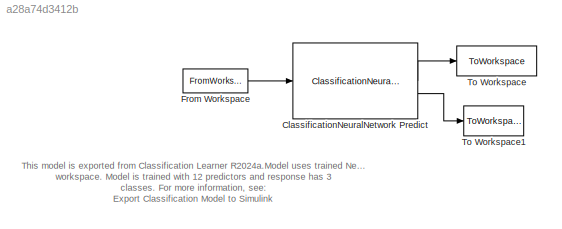
MODEL slx_a28a74d3412b
KIND model
CONFIG AbsTol = auto
CONFIG EnableMultiTasking = off
CONFIG FixedStep = 1
CONFIG MaxStep = auto
CONFIG MinStep = auto
CONFIG PreLoadFcn = modelFilePath = get_param(gcs, 'FileName');\n[filePath, ~, ~] = fileparts(modelFilePath);\ndataFilePath = fullfile(filePath, 'NeuralNetworkModelFromClassificationLearnerData.mat');\nload(dataFilePath);\nclear modelFilePath filePath dataFilePath
CONFIG RelTol = 1e-3
CONFIG SampleTimeConstraint = Unconstrained
CONFIG SolverName = FixedStepDiscrete
CONFIG StartTime = 1
CONFIG StopTime = 240
BLOCK [Reference] ClassificationNeuralNetwork Predict  REF=statsLibrary/Classification/ClassificationNeuralNetwork Predict
  SourceBlock = statsLibrary/Classification/ClassificationNeuralNetwork Predict
  SourceType = ClassificationNeuralNetwork Predict
BLOCK [FromWorkspace] From Workspace
  VariableName = inputData
BLOCK [ToWorkspace] To Workspace
  FixptAsFi = on
  MaxDataPoints = inf
  SampleTime = -1
  VariableName = outputPredictions
BLOCK [ToWorkspace] To Workspace1
  FixptAsFi = on
  MaxDataPoints = inf
  SampleTime = -1
  VariableName = outputScores
ANNOTATION (root): This model is exported from Classification Learner R2024a. Model uses trained Neural Network model structure saved in MATLAB workspace. Model is trained with 12 predictors and response has 3 classes. For more information, see: Export Classification Model to Simulink
LINE ClassificationNeuralNetwork Predict:1 -> To Workspace:1
LINE ClassificationNeuralNetwork Predict:2 -> To Workspace1:1
LINE From Workspace:1 -> ClassificationNeuralNetwork Predict:1
